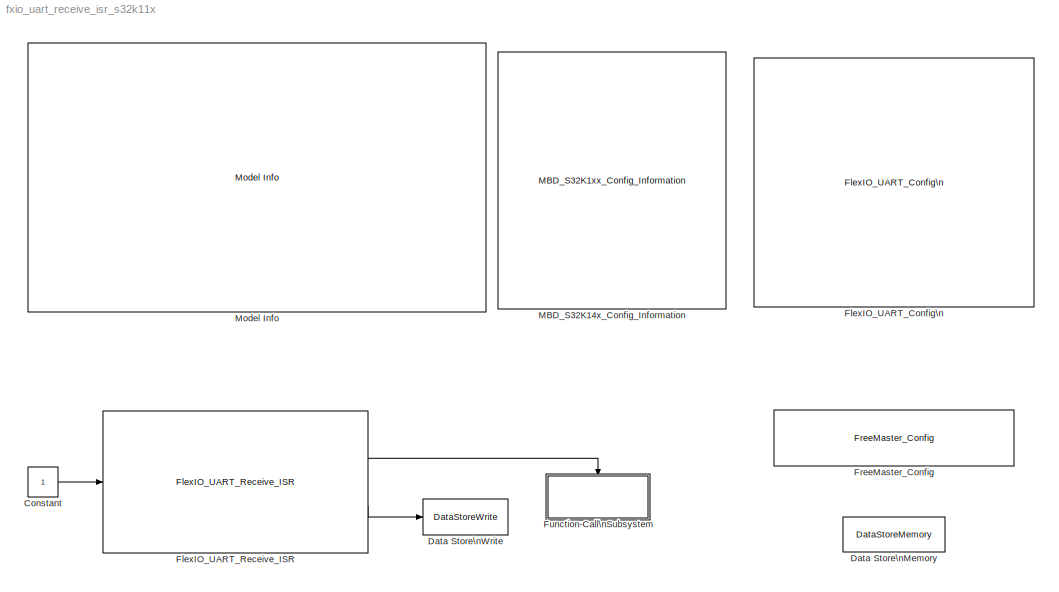
MODEL fxio_uart_receive_isr_s32k11x
KIND model
CONFIG InitFcn = mbd_s32k_consistency_checks(bdroot(gcs));
BLOCK [Constant] Constant
  OutDataTypeStr = uint32
  SID = 48
BLOCK [DataStoreMemory] Data Store\nMemory
  DataStoreName = data_recv
  ReadBeforeWriteMsg = warning
  SID = 49
  ShowAdditionalParam = off
  WriteAfterReadMsg = warning
  WriteAfterWriteMsg = warning
BLOCK [DataStoreWrite] Data Store\nWrite
  DataStoreName = data_recv
  Ports = [1]
  SID = 50
BLOCK [Reference] FlexIO_UART_Config\n  REF=mbd_s32k1xx_ec_toolbox/Communication Blocks/FlexIO Blocks\n/FlexIO UART Blocks/FlexIO_UART_Config\n
  BaudRate = 115200
  BitCount = 8
  DriverType = Interrupts
  InstanceNumber = 0
  Ports = []
  Priority = 1
  RxPin = PTD1: [FXIO_D1 | FlexIO Bi-directional Shift/timer I/O]
  SID = 19
  SourceBlock = mbd_s32k1xx_ec_toolbox/Communication Blocks/FlexIO Blocks\n/FlexIO UART Blocks/FlexIO_UART_Config\n
  SourceType = flexio_uart_s32k_config
  TxPin = PTD0: [FXIO_D0 | FlexIO Bi-directional Shift/timer I/O]
BLOCK [Reference] FlexIO_UART_Receive_ISR  REF=mbd_s32k1xx_ec_toolbox/Communication Blocks/FlexIO Blocks\n/FlexIO UART Blocks/FlexIO_UART_Receive_ISR
  InstanceNumber = 0
  Ports = [1, 2]
  Priority = 1
  SID = 34
  SourceBlock = mbd_s32k1xx_ec_toolbox/Communication Blocks/FlexIO Blocks\n/FlexIO UART Blocks/FlexIO_UART_Receive_ISR
  SourceType = flexio_uart_s32k_receive_isr
BLOCK [Reference] FreeMaster_Config  REF=mbd_s32k1xx_ec_toolbox/Utility Blocks/FreeMaster_Config
  Ports = []
  SID = 55
  SourceBlock = mbd_s32k1xx_ec_toolbox/Utility Blocks/FreeMaster_Config
  SourceType = fm_s32k_config
  baudrate = 115200
  comm_buffer_size = 255
  comm_buffer_size_auto = on
  comm_rqueue_size = 32
  comm_rqueue_size_default = on
  interface = LPUART0
  isr_prio = 2
  max_rec_vars = 8
  max_scope_vars = 8
  mode = Short Interrupt
  rec_buff_size = 1024
  rec_timebase = 0
  rec_timebase_unit = seconds
  rxd = PTB0: [LPUART0_RX | Receive]
  show_adv_opts = on
  txd = PTB1: [LPUART0_TX | Transmit]
  use_recorder = on
  use_scope = on
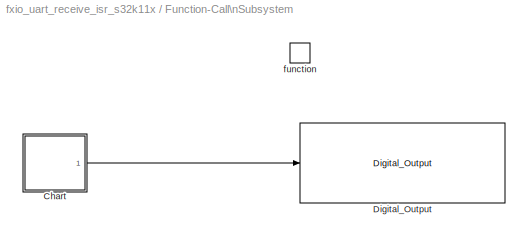
BLOCK [SubSystem] Function-Call\nSubsystem
  Ports = [0, 0, 0, 1]
  RequestExecContextInheritance = off
  SID = 51
  TreatAsAtomicUnit = on
  Variant = off
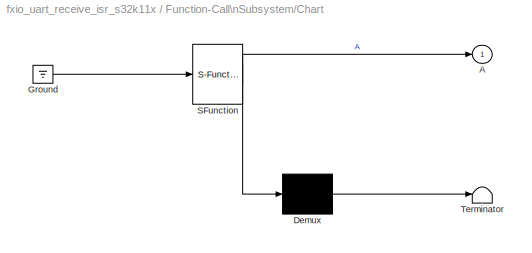
BLOCK [SubSystem] Function-Call\nSubsystem/Chart
  ErrorFcn = Stateflow.Translate.translate
  PermitHierarchicalResolution = ExplicitOnly
  Ports = [0, 1]
  RequestExecContextInheritance = off
  SFBlockType = Chart
  SID = 53
  TreatAsAtomicUnit = on
  Variant = off
BLOCK [Outport] Function-Call\nSubsystem/Chart/ A
  IconDisplay = Port number
  SID = 53::6
BLOCK [Demux] Function-Call\nSubsystem/Chart/ Demux 
  Outputs = 1
  Ports = [1, 1]
  SID = 53::36
BLOCK [Ground] Function-Call\nSubsystem/Chart/ Ground 
  SID = 53::38
BLOCK [S-Function] Function-Call\nSubsystem/Chart/ SFunction 
  EnableBusSupport = on
  FunctionName = sf_sfun
  PortCounts = [1 2]
  Ports = [1, 2]
  SFcnIsStateOwnerBlock = off
  SFunctionDeploymentMode = off
  SID = 53::35
  Tag = Stateflow S-Function fxio_uart_receive_isr_s32k11x 2
BLOCK [Terminator] Function-Call\nSubsystem/Chart/ Terminator 
  SID = 53::37
BLOCK [Reference] Function-Call\nSubsystem/Digital_Output  REF=mbd_s32k1xx_ec_toolbox/GPIO Blocks/Digital_Output
  Ports = [1]
  SID = 54
  SourceBlock = mbd_s32k1xx_ec_toolbox/GPIO Blocks/Digital_Output
  SourceType = gpio_s32k_output
  drive_strength = Low
  gpio_pin = PTD16: [PTD16 | Port D I/O]
  init_val = Low
BLOCK [TriggerPort] Function-Call\nSubsystem/function
  Ports = []
  SID = 52
  StatesWhenEnabling = held
  TriggerType = function-call
  VariantControl = Variant
BLOCK [Reference] MBD_S32K14x_Config_Information  REF=mbd_s32k1xx_ec_toolbox/MBD_S32K1xx_Config_Information
  ADC_PcrCheckEnDis = on
  AMMCLIB_PcrCheckEnDis = on
  CMP_PcrCheckEnDis = on
  CSEc_PcrCheckEnDis = on
  ConfigParams_PcrCheckEnDis = on
  FM_PcrCheckEnDis = on
  FTM_Dual_Edge_Inputs_PcrCheckEnDis = on
  FTM_Hall_Sensor_Inputs_PcrCheckEnDis = on
  FTM_Input_Edge_Inputs_PcrCheckEnDis = on
  FTM_PWM_PcrCheckEnDis = on
  FTM_Quadrature_Inputs_PcrCheckEnDis = on
  FlexCAN_PcrCheckEnDis = on
  FlexIO_PcrCheckEnDis = on
  GPIO_InputPcrCheckEnDis = on
  GPIO_OutputPcrCheckEnDis = on
  LIN_PcrCheckEnDis = on
  LPI2C_PcrCheckEnDis = on
  LPSPI_PcrCheckEnDis = on
  LPTMR_PcrCheckEnDis = on
  LPUART_PcrCheckEnDis = on
  ModelRef_PcrCheckEnDis = on
  PDB0_PcrCheckEnDis = on
  PIT_PcrCheckEnDis = on
  Ports = []
  Priority = 0
  Profile_PcrCheckEnDis = on
  RTC_PcrCheckEnDis = on
  SBC_PcrCheckEnDis = on
  SID = 11
  SourceBlock = mbd_s32k1xx_ec_toolbox/MBD_S32K1xx_Config_Information
  SourceType = MBDTBX_EC_S32K
  WDOG_PcrCheckEnDis = on
  config_params = []
  disp_str = Target : S32K144-64KB_SRAM\nPackage : 100-pin\nSystem clock : 80 MHz\nXTAL clock : External 8 MHz\nCompiler : GCC\nTarget Type : FLASH\nDownload Code after build : (OpenSDA: D)\nStep Tick Interrupt Priority : 15
  ds_import_enable = on
  eDMA_PcrCheckEnDis = on
  gcc_target_assemble_opts = -mcpu=cortex-m0plus -mthumb -g
  gcc_target_compile_opts = -mcpu=cortex-m0plus -mthumb -O1 -g -gstrict-dwarf
  gcc_target_default_lcf = on
  gcc_target_link_opts = -mcpu=cortex-m0plus -mthumb
  gcc_target_user_lcf = S32K118_25_flash.ld
  ghs_target_assemble_opts = -mcpu=cortexm0plus -mthumb -fsoft --gnu_asm
  ghs_target_compile_opts = -mcpu=cortexm0plus -mthumb -fsoft -Ogeneral -Wundef -Wimplicit-int -Wshadow -Wtrigraphs --no_commons --gnu_asm -gnu99 -gdwarf-2 -G
  ghs_target_default_lcf = off
  ghs_target_link_opts = -mcpu=cortexm0plus -mthumb -fsoft
  ghs_target_user_lcf = S32K118_25_flash.ld
  iar_target_assemble_opts = --thumb
  iar_target_compile_opts = --thumb -Ol -e --debug --dlib_config normal
  iar_target_default_lcf = off
  iar_target_link_opts = --no_exceptions --vfe --inline
  iar_target_user_lcf = S32K118_25_flash.icf
  mbdt_ver = 0
  mcu_steptick_prio = 0
  mcu_steptick_timer = LPIT Channel 0
  mcu_system_clock_freq = 40
  mcu_target_name = S32K118
  mcu_target_package = 64-LQFP
  mcu_target_sram_size = 25KB
  mcu_xtal_freq = External 40
  pil_download_enable = off
  pil_download_rate = 57600
  pil_opensda_drive = Custom
  pil_opensda_drive_custom = D
  pil_uart_instance = 0
  pil_uart_rx = PTB0: [LPUART0_RX | Receive]
  pil_uart_tx = PTB1: [LPUART0_TX | Transmit]
  rbl_com_port = Custom
  rbl_com_port_custom = COM1
  rbl_download_enable = on
  rbl_download_interface = OpenSDA
  rbl_restart_request = off
  rbl_start_delay = 5000000
  target_compiler = GCC
  target_memory = FLASH
BLOCK [Reference] Model Info  REF=simulink/Model-Wide\nUtilities/Model Info
  DisplayStringWithTags = Model Name: %<ModelName>\n\nDescription: %<Description>
  Frame = off
  HorizontalTextAlignment = Left
  LeftAlignmentValue = 0.02
  MaskDisplayString = Model Name: fxio_uart_receive_isr_s32k11x\\n\\nDescription: This demo shows how to configure the S32K118EVB to receive data over UART (emulation via FlexIO).\\n\\nThis example requires another board running the fxio_uart_transmit_isr_s32k11x model.\\n\\nHW prerequisite:\\n- 2x S32K118EVB\\n- Connect:\\nPTD0 (FXIO_UART_Tx from the other board) - PTD1 (FXIO_UART_Rx from this board) \\n\\nVerificatio...<+177ch>
  Ports = []
  SID = 47
  SourceBlock = simulink/Model-Wide\nUtilities/Model Info
  SourceProductBaseCode = SL
  SourceProductName = Simulink
  SourceType = CMBlock
LINE Constant:1 -> FlexIO_UART_Receive_ISR:1
LINE FlexIO_UART_Receive_ISR:1 -> Function-Call\nSubsystem:trigger
LINE FlexIO_UART_Receive_ISR:2 -> Data Store\nWrite:1
LINE Function-Call\nSubsystem/Chart/ Demux :1 -> Function-Call\nSubsystem/Chart/ Terminator :1
LINE Function-Call\nSubsystem/Chart/ Ground :1 -> Function-Call\nSubsystem/Chart/ SFunction :1
LINE Function-Call\nSubsystem/Chart/ SFunction :1 -> Function-Call\nSubsystem/Chart/ Demux :1
LINE Function-Call\nSubsystem/Chart/ SFunction :2 -> Function-Call\nSubsystem/Chart/ A:1
LINE Function-Call\nSubsystem/Chart:1 -> Function-Call\nSubsystem/Digital_Output:1
CHART Function-Call\nSubsystem/Chart states=2 transitions=3
  STATE_LABEL 'A'
  STATE_LABEL 'A1'
